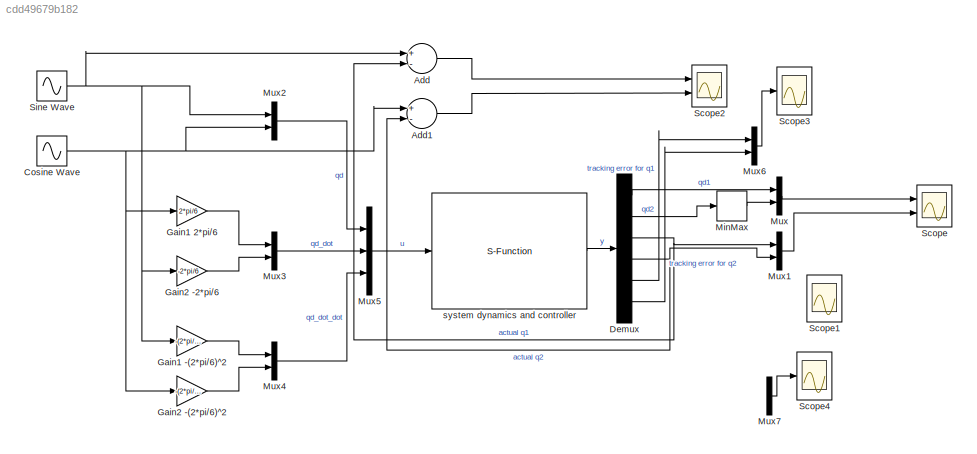
MODEL slx_cdd49679b182
KIND model
BLOCK [Sum] Add
  InputSameDT = off
  Inputs = +-
  OutDataTypeStr = Inherit: Inherit via internal rule
  Ports = [2, 1]
  SaturateOnIntegerOverflow = off
BLOCK [Sum] Add1
  InputSameDT = off
  Inputs = +-
  OutDataTypeStr = Inherit: Inherit via internal rule
  Ports = [2, 1]
  SaturateOnIntegerOverflow = off
BLOCK [Sin] Cosine Wave
  Amplitude = 0.2
  Frequency = 2*pi/6
  Phase = pi/2
  Ports = [0, 1]
  SampleTime = 0
BLOCK [Demux] Demux
  DisplayOption = bar
  Outputs = 6
  Ports = [1, 6]
BLOCK [Gain] Gain1 -(2*pi//6)^2
  Gain = -(2*pi/6)^2
  OutDataTypeStr = Inherit: Inherit via internal rule
  ParamDataTypeStr = Inherit: Inherit via internal rule
  SaturateOnIntegerOverflow = off
BLOCK [Gain] Gain1 2*pi//6
  Gain = 2*pi/6
  OutDataTypeStr = Inherit: Inherit via internal rule
  ParamDataTypeStr = Inherit: Inherit via internal rule
  SaturateOnIntegerOverflow = off
BLOCK [Gain] Gain2 -(2*pi//6)^2
  Gain = -(2*pi/6)^2
  OutDataTypeStr = Inherit: Inherit via internal rule
  ParamDataTypeStr = Inherit: Inherit via internal rule
  SaturateOnIntegerOverflow = off
BLOCK [Gain] Gain2 -2*pi//6
  Gain = -2*pi/6
  OutDataTypeStr = Inherit: Inherit via internal rule
  ParamDataTypeStr = Inherit: Inherit via internal rule
  SaturateOnIntegerOverflow = off
BLOCK [MinMax] MinMax
  Function = max
  InputSameDT = off
  Ports = [1, 1]
  SaturateOnIntegerOverflow = off
BLOCK [Mux] Mux
  DisplayOption = bar
  Inputs = 2
  Ports = [2, 1]
BLOCK [Mux] Mux1
  DisplayOption = bar
  Inputs = 2
  Ports = [2, 1]
BLOCK [Mux] Mux2
  DisplayOption = bar
  Inputs = 2
  Ports = [2, 1]
BLOCK [Mux] Mux3
  DisplayOption = bar
  Inputs = 2
  Ports = [2, 1]
BLOCK [Mux] Mux4
  DisplayOption = bar
  Inputs = 2
  Ports = [2, 1]
BLOCK [Mux] Mux5
  DisplayOption = bar
  Inputs = 3
  Ports = [3, 1]
BLOCK [Mux] Mux6
  DisplayOption = bar
  Inputs = 2
  Ports = [2, 1]
BLOCK [Mux] Mux7
  DisplayOption = bar
  Inputs = 2
  Ports = [2, 1]
BLOCK [Scope] Scope
  DataFormat = StructureWithTime
  Floating = off
  NumInputPorts = 2
  Ports = [2]
  SampleTime = 0
  ShowLegends = off
  YMax = 5~5
  YMin = -5~-5
BLOCK [Scope] Scope1
  DataFormat = StructureWithTime
  Floating = off
  NumInputPorts = 2
  Ports = [2]
  SampleTime = 0
  SaveName = ScopeData1
  ShowLegends = off
  TimeRange = 0.1299083949579183
  YMax = 5.922333327175282e-05~0.1
  YMin = 1.222459437991586e-05~-0.02
BLOCK [Scope] Scope2
  DataFormat = StructureWithTime
  Floating = off
  NumInputPorts = 2
  Ports = [2]
  SampleTime = 0
  SaveName = ScopeData2
  ShowLegends = off
  YMax = 5~5
  YMin = -5~-5
BLOCK [Scope] Scope3
  DataFormat = StructureWithTime
  Floating = off
  LimitDataPoints = off
  NumInputPorts = 1
  Ports = [1]
  SampleTime = 0
  SaveName = ScopeData3
  ShowLegends = off
  TimeRange = 0.1299083949579183
  YMax = 0.03
  YMin = -0.19
BLOCK [Scope] Scope4
  DataFormat = StructureWithTime
  Floating = off
  NumInputPorts = 1
  Ports = [1]
  SampleTime = 0
  SaveName = ScopeData4
  ShowLegends = off
  TimeRange = 0.1299083949579183
  YMax = 5.92233e-05
  YMin = 1.22246e-05
BLOCK [Sin] Sine Wave
  Amplitude = 0.2
  Frequency = 2*pi/6
  Ports = [0, 1]
  SampleTime = 0
BLOCK [S-Function] system dynamics and controller
  EnableBusSupport = off
  FunctionName = state_output_project_3
  Ports = [1, 1]
LINE Add1:1 -> Scope2:2
LINE Add:1 -> Scope2:1
NET Cosine Wave:1 -> Add1:1, Gain1 2*pi//6:1, Gain2 -(2*pi//6)^2:1, Mux2:2
LINE Demux:1 -> Mux:1
LINE Demux:2 -> MinMax:1
NET Demux:3 -> Add:2, Mux1:1
NET Demux:4 -> Add1:2, Mux1:2
LINE Demux:5 -> Mux6:1
LINE Demux:6 -> Mux6:2
LINE Gain1 -(2*pi//6)^2:1 -> Mux4:1
LINE Gain1 2*pi//6:1 -> Mux3:1
LINE Gain2 -(2*pi//6)^2:1 -> Mux4:2
LINE Gain2 -2*pi//6:1 -> Mux3:2
LINE MinMax:1 -> Mux:2
LINE Mux1:1 -> Scope:2
LINE Mux2:1 -> Mux5:1
LINE Mux3:1 -> Mux5:2
LINE Mux4:1 -> Mux5:3
LINE Mux5:1 -> system dynamics and controller:1
LINE Mux6:1 -> Scope3:1
LINE Mux7:1 -> Scope4:1
LINE Mux:1 -> Scope:1
NET Sine Wave:1 -> Add:1, Gain1 -(2*pi//6)^2:1, Gain2 -2*pi//6:1, Mux2:1
LINE system dynamics and controller:1 -> Demux:1
note: NET lines group one-source signal fan-out (src -> all destinations, sorted); 1:1 wires keep LINE
